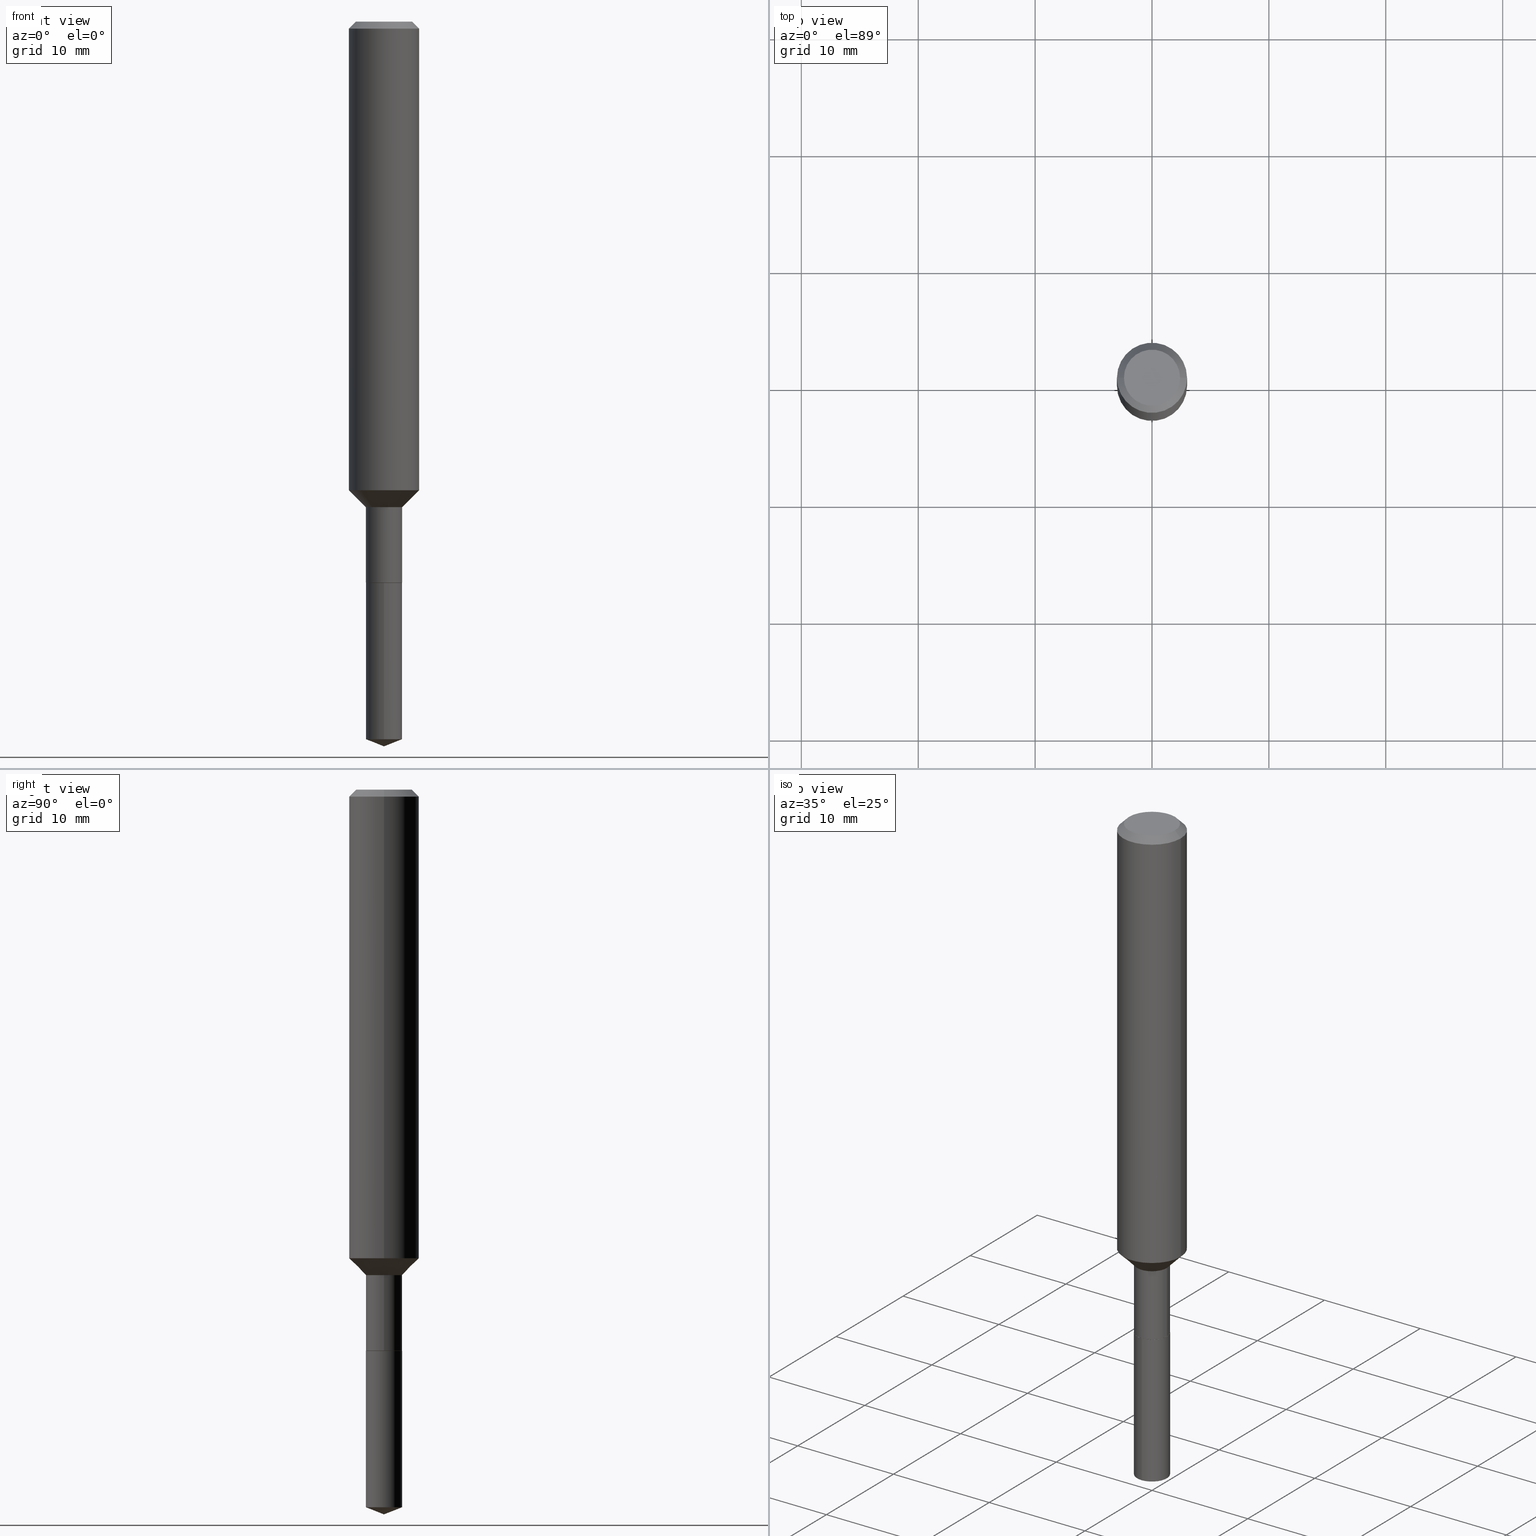
[diagram: canonical four-view strip — front | top / right | iso, engineering-drawing reading convention]
A machine part, canonical four-view strip (front | top / right | iso — engineering-drawing reading convention). The complete STEP part file that produces these views, byte-faithful:
ISO-10303-21;
HEADER;
FILE_DESCRIPTION (( 'STEP AP203' ),
    '1' );
FILE_NAME ('66401.STEP',
    '2024-04-24T22:10:24',
    ( '' ),
    ( '' ),
    'SwSTEP 2.0',
    'SolidWorks 2023',
    '' );
FILE_SCHEMA (( 'CONFIG_CONTROL_DESIGN' ));
ENDSEC;

DATA;
#1 = CARTESIAN_POINT ( 'NONE',  ( 0.1181000000000001632, -6.334594593063117919E-15, -1.578100000000000058 ) ) ;
#2 = CARTESIAN_POINT ( 'NONE',  ( 0.000000000000000000, 0.000000000000000000, 0.000000000000000000 ) ) ;
#3 = EDGE_CURVE ( 'NONE', #59, #392, #174, .T. ) ;
#4 = AXIS2_PLACEMENT_3D ( 'NONE', #460, #382, #431 ) ;
#5 = AXIS2_PLACEMENT_3D ( 'NONE', #217, #373, #360 ) ;
#6 = CARTESIAN_POINT ( 'NONE',  ( -4.259607233388032369E-16, -0.06100000000000843636, -2.416871460987488618 ) ) ;
#7 = APPROVAL ( #257, 'UNSPECIFIED' ) ;
#8 = APPROVAL_STATUS ( 'not_yet_approved' ) ;
#9 = PLANE ( 'NONE',  #306 ) ;
#10 = ORIENTED_EDGE ( 'NONE', *, *, #442, .T. ) ;
#11 = DATE_AND_TIME ( #348, #473 ) ;
#12 = CARTESIAN_POINT ( 'NONE',  ( 4.716267017698007905E-46, -6.733579360998555036E-32, -1.928573779297252010E-17 ) ) ;
#13 = VERTEX_POINT ( 'NONE', #172 ) ;
#14 = AXIS2_PLACEMENT_3D ( 'NONE', #2, #307, #69 ) ;
#15 = ADVANCED_FACE ( 'NONE', ( #296 ), #149, .T. ) ;
#16 = DIRECTION ( 'NONE',  ( 1.000000000000000000, -6.982962677686273021E-15, 0.000000000000000000 ) ) ;
#17 = ORIENTED_EDGE ( 'NONE', *, *, #107, .F. ) ;
#18 = LINE ( 'NONE', #274, #89 ) ;
#19 = ORIENTED_EDGE ( 'NONE', *, *, #107, .T. ) ;
#20 = EDGE_LOOP ( 'NONE', ( #313, #199, #350, #365 ) ) ;
#21 = EDGE_CURVE ( 'NONE', #290, #387, #188, .T. ) ;
#22 = CIRCLE ( 'NONE', #78, 0.06100000000000000561 ) ;
#23 = AXIS2_PLACEMENT_3D ( 'NONE', #12, #270, #160 ) ;
#24 = DIRECTION ( 'NONE',  ( 1.000000000000000000, -6.982962677686273021E-15, 0.000000000000000000 ) ) ;
#25 = CC_DESIGN_PERSON_AND_ORGANIZATION_ASSIGNMENT ( #80, #97, ( #38 ) ) ;
#26 = ORIENTED_EDGE ( 'NONE', *, *, #100, .F. ) ;
#27 = ADVANCED_FACE ( 'NONE', ( #396 ), #99, .T. ) ;
#28 = DIRECTION ( 'NONE',  ( -6.982962677686265922E-15, -1.000000000000000000, 4.478439333875842027E-15 ) ) ;
#29 = VECTOR ( 'NONE', #41, 39.37007874015748143 ) ;
#30 = CARTESIAN_POINT ( 'NONE',  ( 0.06049999999999999128, -7.020321528011911342E-15, -1.889700000000000157 ) ) ;
#31 = CC_DESIGN_APPROVAL ( #206, ( #38 ) ) ;
#32 = CARTESIAN_POINT ( 'NONE',  ( 5.776197320209327532E-31, -8.246878922347559293E-17, -0.02362000000000014088 ) ) ;
#33 = CARTESIAN_POINT ( 'NONE',  ( -0.06099999999999996397, -5.275839216462650965E-15, -1.635199999999999987 ) ) ;
#34 =( NAMED_UNIT ( * ) PLANE_ANGLE_UNIT ( ) SI_UNIT ( $, .RADIAN. ) );
#35 = LINE ( 'NONE', #33, #72 ) ;
#36 = CARTESIAN_POINT ( 'NONE',  ( 5.776197320209327532E-31, -8.246878922347559293E-17, -0.02362000000000014088 ) ) ;
#37 = AXIS2_PLACEMENT_3D ( 'NONE', #234, #42, #308 ) ;
#38 = SECURITY_CLASSIFICATION ( '', '', #419 ) ;
#39 = CARTESIAN_POINT ( 'NONE',  ( 3.998830591873936084E-29, -5.709270285276311674E-15, -1.635199999999999987 ) ) ;
#40 = EDGE_CURVE ( 'NONE', #384, #387, #62, .T. ) ;
#41 = DIRECTION ( 'NONE',  ( -2.445468806185136877E-29, 3.491481338843145188E-15, 1.000000000000000000 ) ) ;
#42 = DIRECTION ( 'NONE',  ( -2.445468806185136597E-29, 3.491481338843145583E-15, 1.000000000000000000 ) ) ;
#43 = CIRCLE ( 'NONE', #23, 0.09447999999999998066 ) ;
#44 = CC_DESIGN_APPROVAL ( #375, ( #411 ) ) ;
#45 = DIRECTION ( 'NONE',  ( -2.445468806185136597E-29, 3.491481338843145583E-15, 1.000000000000000000 ) ) ;
#46 = VERTEX_POINT ( 'NONE', #30 ) ;
#47 = APPROVAL_DATE_TIME ( #84, #206 ) ;
#48 = CARTESIAN_POINT ( 'NONE',  ( 5.776197320209327532E-31, -8.246878922347559293E-17, -0.02362000000000014088 ) ) ;
#49 = ORIENTED_EDGE ( 'NONE', *, *, #383, .T. ) ;
#50 = ADVANCED_FACE ( 'NONE', ( #182 ), #410, .T. ) ;
#51 = CARTESIAN_POINT ( 'NONE',  ( -0.1180999999999999966, -1.957036774093242387E-15, -0.02362000000000014088 ) ) ;
#52 = ORIENTED_EDGE ( 'NONE', *, *, #456, .F. ) ;
#53 = AXIS2_PLACEMENT_3D ( 'NONE', #110, #263, #104 ) ;
#54 = FACE_OUTER_BOUND ( 'NONE', #399, .T. ) ;
#55 = ORIENTED_EDGE ( 'NONE', *, *, #124, .T. ) ;
#56 = ADVANCED_FACE ( 'NONE', ( #441 ), #395, .T. ) ;
#57 = EDGE_LOOP ( 'NONE', ( #17, #291, #327, #52 ) ) ;
#58 = COORDINATED_UNIVERSAL_TIME_OFFSET ( 5, 0, .BEHIND. ) ;
#59 = VERTEX_POINT ( 'NONE', #484 ) ;
#60 = CIRCLE ( 'NONE', #166, 0.06049999999999999128 ) ;
#61 = ORIENTED_EDGE ( 'NONE', *, *, #146, .F. ) ;
#62 = LINE ( 'NONE', #258, #437 ) ;
#63 = DIRECTION ( 'NONE',  ( -2.445468806185136597E-29, 3.491481338843145583E-15, 1.000000000000000000 ) ) ;
#64 = EDGE_LOOP ( 'NONE', ( #275, #236, #436, #309 ) ) ;
#65 = DIRECTION ( 'NONE',  ( -6.982962677686268288E-15, -1.000000000000000000, 3.498627837350014083E-15 ) ) ;
#66 = CIRCLE ( 'NONE', #173, 0.1180999999999999966 ) ;
#67 = EDGE_LOOP ( 'NONE', ( #369, #77, #247, #359 ) ) ;
#68 = ADVANCED_FACE ( 'NONE', ( #221 ), #433, .F. ) ;
#69 = DIRECTION ( 'NONE',  ( 1.000000000000000000, -6.982962677686266711E-15, 4.876176775795936353E-29 ) ) ;
#70 = FACE_OUTER_BOUND ( 'NONE', #64, .T. ) ;
#71 = DIRECTION ( 'NONE',  ( -2.445468806185136597E-29, 3.491481338843145583E-15, 1.000000000000000000 ) ) ;
#72 = VECTOR ( 'NONE', #269, 39.37007874015748143 ) ;
#73 = ADVANCED_FACE ( 'NONE', ( #401 ), #196, .T. ) ;
#74 = CARTESIAN_POINT ( 'NONE',  ( 5.776197320209327532E-31, -8.246878922347559293E-17, -0.02362000000000014088 ) ) ;
#75 = DIRECTION ( 'NONE',  ( -2.445468806185136597E-29, 3.491481338843145583E-15, 1.000000000000000000 ) ) ;
#76 = DIRECTION ( 'NONE',  ( -6.982962677686268288E-15, -1.000000000000000000, 3.498627837350014083E-15 ) ) ;
#77 = ORIENTED_EDGE ( 'NONE', *, *, #3, .T. ) ;
#78 = AXIS2_PLACEMENT_3D ( 'NONE', #157, #200, #457 ) ;
#79 = VECTOR ( 'NONE', #391, 39.37007874015748143 ) ;
#80 = PERSON_AND_ORGANIZATION ( #186, #246 ) ;
#81 = DIRECTION ( 'NONE',  ( -2.445468806185136597E-29, 3.491481338843145583E-15, 1.000000000000000000 ) ) ;
#82 = ADVANCED_FACE ( 'NONE', ( #70 ), #155, .T. ) ;
#83 = EDGE_LOOP ( 'NONE', ( #140, #422, #86, #332 ) ) ;
#84 = DATE_AND_TIME ( #330, #117 ) ;
#85 = CARTESIAN_POINT ( 'NONE',  ( 4.334310688137201206E-16, 0.06099999999999155403, -2.416871460987489062 ) ) ;
#86 = ORIENTED_EDGE ( 'NONE', *, *, #278, .F. ) ;
#87 = DIRECTION ( 'NONE',  ( 0.7071067811866259545, -2.468850131083078659E-15, 0.7071067811864690800 ) ) ;
#88 = ORIENTED_EDGE ( 'NONE', *, *, #232, .T. ) ;
#89 = VECTOR ( 'NONE', #87, 39.37007874015748143 ) ;
#90 = AXIS2_PLACEMENT_3D ( 'NONE', #293, #63, #102 ) ;
#91 = DIRECTION ( 'NONE',  ( -2.445468806185136597E-29, 3.491481338843145583E-15, 1.000000000000000000 ) ) ;
#92 = ORIENTED_EDGE ( 'NONE', *, *, #220, .T. ) ;
#93 = PRODUCT_DEFINITION ( 'UNKNOWN', '', #411, #122 ) ;
#94 = CARTESIAN_POINT ( 'NONE',  ( -0.06049999999999999128, -6.167973930877032679E-15, -1.889700000000000157 ) ) ;
#95 = PERSON_AND_ORGANIZATION ( #186, #246 ) ;
#96 = EDGE_LOOP ( 'NONE', ( #88, #426 ) ) ;
#97 = PERSON_AND_ORGANIZATION_ROLE ( 'classification_officer' ) ;
#98 = AXIS2_PLACEMENT_3D ( 'NONE', #36, #305, #267 ) ;
#99 = CYLINDRICAL_SURFACE ( 'NONE', #164, 0.06099999999999999173 ) ;
#100 = EDGE_CURVE ( 'NONE', #165, #204, #430, .T. ) ;
#101 = COORDINATED_UNIVERSAL_TIME_OFFSET ( 5, 0, .BEHIND. ) ;
#102 = DIRECTION ( 'NONE',  ( 1.000000000000000000, -6.982962677686263555E-15, 0.000000000000000000 ) ) ;
#103 = CARTESIAN_POINT ( 'NONE',  ( 4.621202403048053204E-29, -6.597852286011892490E-15, -1.889700000000000157 ) ) ;
#104 = DIRECTION ( 'NONE',  ( 1.000000000000000000, 0.000000000000000000, 0.000000000000000000 ) ) ;
#105 = EDGE_LOOP ( 'NONE', ( #393, #461, #458 ) ) ;
#106 =( NAMED_UNIT ( * ) SI_UNIT ( $, .STERADIAN. ) SOLID_ANGLE_UNIT ( ) );
#107 = EDGE_CURVE ( 'NONE', #416, #204, #35, .T. ) ;
#108 = VECTOR ( 'NONE', #448, 39.37007874015748143 ) ;
#109 = DIRECTION ( 'NONE',  ( -2.445468806185136597E-29, 3.491481338843145583E-15, 1.000000000000000000 ) ) ;
#110 = CARTESIAN_POINT ( 'NONE',  ( 0.000000000000000000, 0.000000000000000000, 0.000000000000000000 ) ) ;
#111 = CC_DESIGN_PERSON_AND_ORGANIZATION_ASSIGNMENT ( #159, #272, ( #411 ) ) ;
#112 = DIRECTION ( 'NONE',  ( -2.445468806185136597E-29, 3.491481338843145583E-15, 1.000000000000000000 ) ) ;
#113 = DIRECTION ( 'NONE',  ( -2.434988852863249163E-29, 3.506489228481988303E-15, 1.000000000000000000 ) ) ;
#114 = EDGE_CURVE ( 'NONE', #356, #165, #192, .T. ) ;
#115 = CARTESIAN_POINT ( 'NONE',  ( -0.1181000000000000799, 8.391509709326788873E-16, -5.809262341591047988E-30 ) ) ;
#116 = AXIS2_PLACEMENT_3D ( 'NONE', #303, #112, #486 ) ;
#117 = LOCAL_TIME ( 18, 10, 24.00000000000000000, #288 ) ;
#118 = PRODUCT ( '66401', '66401', '', ( #447 ) ) ;
#119 = DIRECTION ( 'NONE',  ( -2.434988852863249163E-29, 3.506489228481988303E-15, 1.000000000000000000 ) ) ;
#120 = DIRECTION ( 'NONE',  ( 1.000000000000000000, -6.982962677686261189E-15, 0.000000000000000000 ) ) ;
#121 = ORIENTED_EDGE ( 'NONE', *, *, #3, .F. ) ;
#122 = DESIGN_CONTEXT ( 'detailed design', #341, 'design' ) ;
#123 = PERSON_AND_ORGANIZATION ( #186, #246 ) ;
#124 = EDGE_CURVE ( 'NONE', #361, #126, #66, .T. ) ;
#125 = DIRECTION ( 'NONE',  ( 1.000000000000000000, -6.982962677686268288E-15, 0.000000000000000000 ) ) ;
#126 = VERTEX_POINT ( 'NONE', #380 ) ;
#127 = AXIS2_PLACEMENT_3D ( 'NONE', #48, #91, #282 ) ;
#128 = CC_DESIGN_SECURITY_CLASSIFICATION ( #38, ( #411 ) ) ;
#129 = CALENDAR_DATE ( 2024, 24, 4 ) ;
#130 = CARTESIAN_POINT ( 'NONE',  ( -0.1180999999999999966, 7.422191030112725094E-16, -0.02362000000000014088 ) ) ;
#131 = ORIENTED_EDGE ( 'NONE', *, *, #232, .F. ) ;
#132 = MANIFOLD_SOLID_BREP ( 'Body-Move/Copy2[1]', #299 ) ;
#133 = CARTESIAN_POINT ( 'NONE',  ( 0.1181000000000000799, -8.246878922347486570E-16, 5.758764772215004644E-30 ) ) ;
#134 = ORIENTED_EDGE ( 'NONE', *, *, #383, .F. ) ;
#135 = FACE_OUTER_BOUND ( 'NONE', #242, .T. ) ;
#136 = ORIENTED_EDGE ( 'NONE', *, *, #255, .F. ) ;
#137 = MANIFOLD_SOLID_BREP ( 'Body-Move/Copy2[2]', #194 ) ;
#138 = CONICAL_SURFACE ( 'NONE', #266, 0.1180999999999999966, 0.7853981633974460586 ) ;
#139 = DIRECTION ( 'NONE',  ( -2.445468806185136597E-29, 3.491481338843145583E-15, 1.000000000000000000 ) ) ;
#140 = ORIENTED_EDGE ( 'NONE', *, *, #100, .T. ) ;
#141 = EDGE_LOOP ( 'NONE', ( #61, #218, #171, #283 ) ) ;
#142 = DIRECTION ( 'NONE',  ( -2.434988852863249163E-29, 3.506489228481988303E-15, 1.000000000000000000 ) ) ;
#143 = CARTESIAN_POINT ( 'NONE',  ( 4.621202403048053204E-29, -6.597852286011892490E-15, -1.889700000000000157 ) ) ;
#144 = PERSON_AND_ORGANIZATION_ROLE ( 'design_owner' ) ;
#145 = ORIENTED_EDGE ( 'NONE', *, *, #357, .F. ) ;
#146 = EDGE_CURVE ( 'NONE', #204, #361, #451, .T. ) ;
#147 = DIRECTION ( 'NONE',  ( -2.445468806185136597E-29, 3.491481338843145583E-15, 1.000000000000000000 ) ) ;
#148 = CC_DESIGN_PERSON_AND_ORGANIZATION_ASSIGNMENT ( #123, #362, ( #93 ) ) ;
#149 = CONICAL_SURFACE ( 'NONE', #417, 0.06049999999999999128, 0.7853981633975591903 ) ;
#150 = AXIS2_PLACEMENT_3D ( 'NONE', #103, #178, #256 ) ;
#151 = CARTESIAN_POINT ( 'NONE',  ( -0.1181000000000001632, -4.670755729895689092E-15, -1.578100000000000058 ) ) ;
#152 = EDGE_CURVE ( 'NONE', #13, #384, #413, .T. ) ;
#153 = LINE ( 'NONE', #193, #260 ) ;
#154 = CARTESIAN_POINT ( 'NONE',  ( 0.06100000000000000561, -7.022067268681333634E-15, -1.889200000000000212 ) ) ;
#155 = CYLINDRICAL_SURFACE ( 'NONE', #226, 0.06099999999999997785 ) ;
#156 = VECTOR ( 'NONE', #241, 39.37007874015748143 ) ;
#157 = CARTESIAN_POINT ( 'NONE',  ( 4.619979668644960403E-29, -6.596106545342470986E-15, -1.889200000000000212 ) ) ;
#158 = EDGE_CURVE ( 'NONE', #468, #126, #153, .T. ) ;
#159 = PERSON_AND_ORGANIZATION ( #186, #246 ) ;
#160 = DIRECTION ( 'NONE',  ( 1.000000000000000000, -6.982962677686267499E-15, 4.875432709231658792E-29 ) ) ;
#161 = ORIENTED_EDGE ( 'NONE', *, *, #225, .T. ) ;
#162 = DATE_TIME_ROLE ( 'classification_date' ) ;
#163 = FACE_OUTER_BOUND ( 'NONE', #67, .T. ) ;
#164 = AXIS2_PLACEMENT_3D ( 'NONE', #363, #478, #28 ) ;
#165 = VERTEX_POINT ( 'NONE', #1 ) ;
#166 = AXIS2_PLACEMENT_3D ( 'NONE', #207, #465, #120 ) ;
#167 = ADVANCED_FACE ( 'NONE', ( #265 ), #187, .T. ) ;
#168 = LINE ( 'NONE', #133, #79 ) ;
#169 = ORIENTED_EDGE ( 'NONE', *, *, #414, .F. ) ;
#170 = CARTESIAN_POINT ( 'NONE',  ( 0.06099999999999996397, -6.135231008615174322E-15, -1.635199999999999987 ) ) ;
#171 = ORIENTED_EDGE ( 'NONE', *, *, #427, .T. ) ;
#172 = CARTESIAN_POINT ( 'NONE',  ( 5.943564290953905470E-29, -8.558989557801686786E-15, -2.440900000000000070 ) ) ;
#173 = AXIS2_PLACEMENT_3D ( 'NONE', #74, #71, #345 ) ;
#174 = LINE ( 'NONE', #94, #231 ) ;
#175 = ADVANCED_FACE ( 'NONE', ( #227 ), #487, .T. ) ;
#176 = DIRECTION ( 'NONE',  ( -0.7071067811866259545, 7.493145998870638150E-15, 0.7071067811864690800 ) ) ;
#177 = CC_DESIGN_PERSON_AND_ORGANIZATION_ASSIGNMENT ( #311, #254, ( #411 ) ) ;
#178 = DIRECTION ( 'NONE',  ( 2.434988852863248882E-29, -3.506489228481988303E-15, -1.000000000000000000 ) ) ;
#179 =( CONVERSION_BASED_UNIT ( 'INCH', #440 ) LENGTH_UNIT ( ) NAMED_UNIT ( #425 ) );
#180 = CIRCLE ( 'NONE', #127, 0.1180999999999999966 ) ;
#181 = AXIS2_PLACEMENT_3D ( 'NONE', #331, #142, #65 ) ;
#182 = FACE_OUTER_BOUND ( 'NONE', #251, .T. ) ;
#183 = DIRECTION ( 'NONE',  ( -1.000000000000000000, 6.982962677686266711E-15, 0.000000000000000000 ) ) ;
#184 = DIRECTION ( 'NONE',  ( -6.982962677686265922E-15, -1.000000000000000000, 4.478439333875842027E-15 ) ) ;
#185 = ADVANCED_FACE ( 'NONE', ( #223 ), #230, .T. ) ;
#186 = PERSON ( 'UNSPECIFIED', 'UNSPECIFIED', 'UNSPECIFIED', ('UNSPECIFIED'), ('UNSPECIFIED'), ('UNSPECIFIED') ) ;
#187 = CYLINDRICAL_SURFACE ( 'NONE', #233, 0.1181000000000000799 ) ;
#188 = CIRCLE ( 'NONE', #252, 0.06099999999999999173 ) ;
#189 = AXIS2_PLACEMENT_3D ( 'NONE', #39, #109, #409 ) ;
#190 = AXIS2_PLACEMENT_3D ( 'NONE', #470, #415, #76 ) ;
#191 = DIRECTION ( 'NONE',  ( 0.7071067811865484609, -2.468850131082266921E-15, 0.7071067811865465735 ) ) ;
#192 = LINE ( 'NONE', #342, #418 ) ;
#193 = CARTESIAN_POINT ( 'NONE',  ( 0.1180999999999999966, -8.926936027602933910E-16, -0.02362000000000014088 ) ) ;
#194 = CLOSED_SHELL ( 'NONE', ( #286, #73, #175, #50, #82, #211, #56, #167, #480, #229, #315, #15 ) ) ;
#195 = CARTESIAN_POINT ( 'NONE',  ( -0.06099999999999997785, 4.334310688136609560E-16, -3.000550405055491442E-30 ) ) ;
#196 = CONICAL_SURFACE ( 'NONE', #98, 0.1180999999999999966, 0.7853981633974460586 ) ;
#197 = APPROVAL_DATE_TIME ( #423, #375 ) ;
#198 = DIRECTION ( 'NONE',  ( -1.000000000000000000, 6.982962677686265922E-15, -4.876176775795935793E-29 ) ) ;
#199 = ORIENTED_EDGE ( 'NONE', *, *, #158, .T. ) ;
#200 = DIRECTION ( 'NONE',  ( -2.445468806185136597E-29, 3.491481338843145583E-15, 1.000000000000000000 ) ) ;
#201 = EDGE_LOOP ( 'NONE', ( #145, #161, #389, #343 ) ) ;
#202 = EDGE_CURVE ( 'NONE', #13, #403, #450, .T. ) ;
#203 = DIRECTION ( 'NONE',  ( -2.445468806185136877E-29, 3.491481338843145188E-15, 1.000000000000000000 ) ) ;
#204 = VERTEX_POINT ( 'NONE', #151 ) ;
#205 = CONICAL_SURFACE ( 'NONE', #190, 99.94676754583969114, 1.195550537616118625 ) ;
#206 = APPROVAL ( #237, 'UNSPECIFIED' ) ;
#207 = CARTESIAN_POINT ( 'NONE',  ( 4.621202403048053204E-29, -6.597852286011892490E-15, -1.889700000000000157 ) ) ;
#208 = VERTEX_POINT ( 'NONE', #154 ) ;
#209 = ORIENTED_EDGE ( 'NONE', *, *, #40, .F. ) ;
#210 = EDGE_LOOP ( 'NONE', ( #10, #466, #429, #209 ) ) ;
#211 = ADVANCED_FACE ( 'NONE', ( #337 ), #374, .T. ) ;
#212 = CIRCLE ( 'NONE', #37, 0.06049999999999999128 ) ;
#213 = CC_DESIGN_APPROVAL ( #7, ( #93 ) ) ;
#214 = ORIENTED_EDGE ( 'NONE', *, *, #323, .T. ) ;
#215 = APPROVAL_DATE_TIME ( #400, #7 ) ;
#216 = DIRECTION ( 'NONE',  ( 1.000000000000000000, -6.982962677686273021E-15, 0.000000000000000000 ) ) ;
#217 = CARTESIAN_POINT ( 'NONE',  ( 4.621202403048053204E-29, -6.597852286011892490E-15, -1.889700000000000157 ) ) ;
#218 = ORIENTED_EDGE ( 'NONE', *, *, #456, .T. ) ;
#219 = FACE_OUTER_BOUND ( 'NONE', #105, .T. ) ;
#220 = EDGE_CURVE ( 'NONE', #356, #416, #333, .T. ) ;
#221 = FACE_OUTER_BOUND ( 'NONE', #322, .T. ) ;
#222 = DIRECTION ( 'NONE',  ( -2.434988852863249163E-29, 3.506489228481988303E-15, 1.000000000000000000 ) ) ;
#223 = FACE_OUTER_BOUND ( 'NONE', #201, .T. ) ;
#224 = DIRECTION ( 'NONE',  ( 1.000000000000000000, -6.982962677686266711E-15, 4.876176775795935232E-29 ) ) ;
#225 = EDGE_CURVE ( 'NONE', #403, #384, #453, .T. ) ;
#226 = AXIS2_PLACEMENT_3D ( 'NONE', #406, #228, #224 ) ;
#227 = FACE_OUTER_BOUND ( 'NONE', #83, .T. ) ;
#228 = DIRECTION ( 'NONE',  ( -2.445468806185136597E-29, 3.491481338843145583E-15, 1.000000000000000000 ) ) ;
#229 = ADVANCED_FACE ( 'NONE', ( #408 ), #376, .F. ) ;
#230 = CYLINDRICAL_SURFACE ( 'NONE', #353, 0.06099999999999999173 ) ;
#231 = VECTOR ( 'NONE', #176, 39.37007874015748143 ) ;
#232 = EDGE_CURVE ( 'NONE', #439, #468, #43, .T. ) ;
#233 = AXIS2_PLACEMENT_3D ( 'NONE', #346, #75, #455 ) ;
#234 = CARTESIAN_POINT ( 'NONE',  ( 4.621202403048053204E-29, -6.597852286011892490E-15, -1.889700000000000157 ) ) ;
#235 = AXIS2_PLACEMENT_3D ( 'NONE', #424, #467, #16 ) ;
#236 = ORIENTED_EDGE ( 'NONE', *, *, #248, .T. ) ;
#237 = APPROVAL_STATUS ( 'not_yet_approved' ) ;
#238 = DIRECTION ( 'NONE',  ( 1.000000000000000000, -6.982962677686265922E-15, 4.876176775795935793E-29 ) ) ;
#239 = ORIENTED_EDGE ( 'NONE', *, *, #248, .F. ) ;
#240 = APPROVAL_ROLE ( '' ) ;
#241 = DIRECTION ( 'NONE',  ( -2.434988852863248882E-29, 3.506489228481988303E-15, 1.000000000000000000 ) ) ;
#242 = EDGE_LOOP ( 'NONE', ( #136, #169 ) ) ;
#243 = CARTESIAN_POINT ( 'NONE',  ( 4.334310688137072523E-16, 0.06099999999999339284, -1.889700000000000379 ) ) ;
#244 = ORIENTED_EDGE ( 'NONE', *, *, #398, .T. ) ;
#245 = AXIS2_PLACEMENT_3D ( 'NONE', #354, #45, #347 ) ;
#246 = ORGANIZATION ( 'UNSPECIFIED', 'UNSPECIFIED', '' ) ;
#247 = ORIENTED_EDGE ( 'NONE', *, *, #344, .F. ) ;
#248 = EDGE_CURVE ( 'NONE', #392, #416, #277, .T. ) ;
#249 = EDGE_LOOP ( 'NONE', ( #474, #131, #244, #55 ) ) ;
#250 = PRODUCT_RELATED_PRODUCT_CATEGORY ( 'detail', '', ( #118 ) ) ;
#251 = EDGE_LOOP ( 'NONE', ( #92, #19, #26, #471 ) ) ;
#252 = AXIS2_PLACEMENT_3D ( 'NONE', #143, #324, #329 ) ;
#253 = DIRECTION ( 'NONE',  ( -2.434988852863248882E-29, 3.506489228481988303E-15, 1.000000000000000000 ) ) ;
#254 = PERSON_AND_ORGANIZATION_ROLE ( 'design_supplier' ) ;
#255 = EDGE_CURVE ( 'NONE', #46, #59, #212, .T. ) ;
#256 = DIRECTION ( 'NONE',  ( 6.982962677686265922E-15, 1.000000000000000000, -3.506489228481988303E-15 ) ) ;
#257 = APPROVAL_STATUS ( 'not_yet_approved' ) ;
#258 = CARTESIAN_POINT ( 'NONE',  ( -4.259607233388159573E-16, -0.06100000000000659062, -1.889699999999999713 ) ) ;
#259 = DIRECTION ( 'NONE',  ( -2.445468806185136877E-29, 3.491481338843145188E-15, 1.000000000000000000 ) ) ;
#260 = VECTOR ( 'NONE', #304, 39.37007874015748143 ) ;
#261 = APPROVAL_PERSON_ORGANIZATION ( #328, #375, #240 ) ;
#262 = CARTESIAN_POINT ( 'NONE',  ( 5.904859034100222051E-29, -8.446373335527634562E-15, -2.416871460987489062 ) ) ;
#263 = DIRECTION ( 'NONE',  ( 0.000000000000000000, 0.000000000000000000, 1.000000000000000000 ) ) ;
#264 = DIRECTION ( 'NONE',  ( -6.982962677686265922E-15, -1.000000000000000000, 4.478439333875841238E-15 ) ) ;
#265 = FACE_OUTER_BOUND ( 'NONE', #141, .T. ) ;
#266 = AXIS2_PLACEMENT_3D ( 'NONE', #32, #485, #183 ) ;
#267 = DIRECTION ( 'NONE',  ( -1.000000000000000000, 6.982962677686266711E-15, 0.000000000000000000 ) ) ;
#268 = PRODUCT_DEFINITION_SHAPE ( 'NONE', 'NONE',  #93 ) ;
#269 = DIRECTION ( 'NONE',  ( -0.7071067811865484609, 7.493145998870357316E-15, 0.7071067811865465735 ) ) ;
#270 = DIRECTION ( 'NONE',  ( -2.445468806185136597E-29, 3.491481338843145583E-15, 1.000000000000000000 ) ) ;
#271 = ORIENTED_EDGE ( 'NONE', *, *, #464, .T. ) ;
#272 = PERSON_AND_ORGANIZATION_ROLE ( 'creator' ) ;
#273 = VECTOR ( 'NONE', #388, 39.37007874015748143 ) ;
#274 = CARTESIAN_POINT ( 'NONE',  ( 0.06049999999999999128, -7.020321528011911342E-15, -1.889700000000000157 ) ) ;
#275 = ORIENTED_EDGE ( 'NONE', *, *, #344, .T. ) ;
#276 = DATE_TIME_ROLE ( 'creation_date' ) ;
#277 = LINE ( 'NONE', #195, #462 ) ;
#278 = EDGE_CURVE ( 'NONE', #126, #361, #180, .T. ) ;
#279 = ORIENTED_EDGE ( 'NONE', *, *, #366, .F. ) ;
#280 = CARTESIAN_POINT ( 'NONE',  ( 2.358133508849003952E-46, -3.366789680499277518E-32, -9.642868896486260050E-18 ) ) ;
#281 = EDGE_LOOP ( 'NONE', ( #121, #367, #214, #134 ) ) ;
#282 = DIRECTION ( 'NONE',  ( 1.000000000000000000, -6.982962677686266711E-15, 0.000000000000000000 ) ) ;
#283 = ORIENTED_EDGE ( 'NONE', *, *, #124, .F. ) ;
#284 = VECTOR ( 'NONE', #490, 39.37007874015748854 ) ;
#285 = CIRCLE ( 'NONE', #397, 0.06100000000000000561 ) ;
#286 = ADVANCED_FACE ( 'NONE', ( #163 ), #488, .T. ) ;
#287 = CARTESIAN_POINT ( 'NONE',  ( 3.998830591873936084E-29, -5.709270285276311674E-15, -1.635199999999999987 ) ) ;
#288 = COORDINATED_UNIVERSAL_TIME_OFFSET ( 5, 0, .BEHIND. ) ;
#289 = ADVANCED_BREP_SHAPE_REPRESENTATION ( '66401', ( #132, #137, #53 ), #454 ) ;
#290 = VERTEX_POINT ( 'NONE', #381 ) ;
#291 = ORIENTED_EDGE ( 'NONE', *, *, #366, .T. ) ;
#292 = CIRCLE ( 'NONE', #5, 0.06099999999999999173 ) ;
#293 = CARTESIAN_POINT ( 'NONE',  ( 3.859194323040764276E-29, -5.509906700828368078E-15, -1.578100000000000058 ) ) ;
#294 = DIRECTION ( 'NONE',  ( -2.445468806185136597E-29, 3.491481338843145583E-15, 1.000000000000000000 ) ) ;
#295 = PERSON_AND_ORGANIZATION ( #186, #246 ) ;
#296 = FACE_OUTER_BOUND ( 'NONE', #281, .T. ) ;
#297 = LINE ( 'NONE', #371, #364 ) ;
#298 = CARTESIAN_POINT ( 'NONE',  ( 3.859194323040764276E-29, -5.509906700828368078E-15, -1.578100000000000058 ) ) ;
#299 = CLOSED_SHELL ( 'NONE', ( #27, #449, #435, #185, #68 ) ) ;
#300 = AXIS2_PLACEMENT_3D ( 'NONE', #262, #113, #264 ) ;
#301 = APPLICATION_PROTOCOL_DEFINITION ( 'international standard', 'config_control_design', 1994, #469 ) ;
#302 = APPROVAL_PERSON_ORGANIZATION ( #95, #206, #385 ) ;
#303 = CARTESIAN_POINT ( 'NONE',  ( 0.000000000000000000, 0.000000000000000000, 0.000000000000000000 ) ) ;
#304 = DIRECTION ( 'NONE',  ( 0.7071067811865459074, -7.319954787623249734E-15, -0.7071067811865491270 ) ) ;
#305 = DIRECTION ( 'NONE',  ( 2.445468806185136597E-29, -3.491481338843145583E-15, -1.000000000000000000 ) ) ;
#306 = AXIS2_PLACEMENT_3D ( 'NONE', #319, #421, #238 ) ;
#307 = DIRECTION ( 'NONE',  ( -2.445468806185136597E-29, 3.491481338843145583E-15, 1.000000000000000000 ) ) ;
#308 = DIRECTION ( 'NONE',  ( 1.000000000000000000, -6.982962677686261189E-15, 0.000000000000000000 ) ) ;
#309 = ORIENTED_EDGE ( 'NONE', *, *, #464, .F. ) ;
#310 = UNCERTAINTY_MEASURE_WITH_UNIT (LENGTH_MEASURE( 1.000000000000000082E-05 ), #179, 'distance_accuracy_value', 'NONE');
#311 = PERSON_AND_ORGANIZATION ( #186, #246 ) ;
#312 = CARTESIAN_POINT ( 'NONE',  ( -0.06099999999999996397, -5.719257346495731015E-15, -1.635199999999999987 ) ) ;
#313 = ORIENTED_EDGE ( 'NONE', *, *, #338, .F. ) ;
#314 = SHAPE_DEFINITION_REPRESENTATION ( #268, #289 ) ;
#315 = ADVANCED_FACE ( 'NONE', ( #135 ), #9, .F. ) ;
#316 = AXIS2_PLACEMENT_3D ( 'NONE', #394, #139, #24 ) ;
#317 = LINE ( 'NONE', #243, #156 ) ;
#318 = EDGE_LOOP ( 'NONE', ( #239, #49, #271, #279 ) ) ;
#319 = CARTESIAN_POINT ( 'NONE',  ( 4.621202403048053204E-29, -6.597852286011892490E-15, -1.889700000000000157 ) ) ;
#320 = ORIENTED_EDGE ( 'NONE', *, *, #152, .T. ) ;
#321 = CARTESIAN_POINT ( 'NONE',  ( -0.09447999999999998066, 7.009847083995354710E-16, -1.928573779297727792E-17 ) ) ;
#322 = EDGE_LOOP ( 'NONE', ( #372, #352 ) ) ;
#323 = EDGE_CURVE ( 'NONE', #46, #208, #18, .T. ) ;
#324 = DIRECTION ( 'NONE',  ( -2.434988852863249163E-29, 3.506489228481988303E-15, 1.000000000000000000 ) ) ;
#325 = CIRCLE ( 'NONE', #4, 0.09447999999999998066 ) ;
#326 = CALENDAR_DATE ( 2024, 24, 4 ) ;
#327 = ORIENTED_EDGE ( 'NONE', *, *, #114, .T. ) ;
#328 = PERSON_AND_ORGANIZATION ( #186, #246 ) ;
#329 = DIRECTION ( 'NONE',  ( -6.982962677686265922E-15, -1.000000000000000000, 4.478439333875842027E-15 ) ) ;
#330 = CALENDAR_DATE ( 2024, 24, 4 ) ;
#331 = CARTESIAN_POINT ( 'NONE',  ( -8.990233460988559297E-28, 1.295201278780987653E-13, 36.92917874015748225 ) ) ;
#332 = ORIENTED_EDGE ( 'NONE', *, *, #427, .F. ) ;
#333 = CIRCLE ( 'NONE', #189, 0.06099999999999996397 ) ;
#334 = LOCAL_TIME ( 18, 10, 24.00000000000000000, #459 ) ;
#335 = DIRECTION ( 'NONE',  ( 1.000000000000000000, -6.982962677686261189E-15, 0.000000000000000000 ) ) ;
#336 = CARTESIAN_POINT ( 'NONE',  ( 5.904859034100222051E-29, -8.446373335527634562E-15, -2.416871460987489062 ) ) ;
#337 = FACE_OUTER_BOUND ( 'NONE', #318, .T. ) ;
#338 = EDGE_CURVE ( 'NONE', #468, #439, #325, .T. ) ;
#339 = CARTESIAN_POINT ( 'NONE',  ( 5.943564290953905470E-29, -8.558989557801686786E-15, -2.440900000000000070 ) ) ;
#340 = CC_DESIGN_DATE_AND_TIME_ASSIGNMENT ( #463, #162, ( #38 ) ) ;
#341 = APPLICATION_CONTEXT ( 'configuration controlled 3d designs of mechanical parts and assemblies' ) ;
#342 = CARTESIAN_POINT ( 'NONE',  ( 0.06099999999999996397, -6.135231008615174322E-15, -1.635199999999999987 ) ) ;
#343 = ORIENTED_EDGE ( 'NONE', *, *, #21, .F. ) ;
#344 = EDGE_CURVE ( 'NONE', #208, #392, #370, .T. ) ;
#345 = DIRECTION ( 'NONE',  ( 1.000000000000000000, -6.982962677686266711E-15, 0.000000000000000000 ) ) ;
#346 = CARTESIAN_POINT ( 'NONE',  ( 0.000000000000000000, 0.000000000000000000, 0.000000000000000000 ) ) ;
#347 = DIRECTION ( 'NONE',  ( 1.000000000000000000, -6.982962677686261189E-15, 0.000000000000000000 ) ) ;
#348 = CALENDAR_DATE ( 2024, 24, 4 ) ;
#349 = CARTESIAN_POINT ( 'NONE',  ( -4.259607233388159573E-16, -0.06100000000000659062, -1.889699999999999713 ) ) ;
#350 = ORIENTED_EDGE ( 'NONE', *, *, #278, .T. ) ;
#351 = LINE ( 'NONE', #130, #273 ) ;
#352 = ORIENTED_EDGE ( 'NONE', *, *, #21, .T. ) ;
#353 = AXIS2_PLACEMENT_3D ( 'NONE', #412, #119, #184 ) ;
#354 = CARTESIAN_POINT ( 'NONE',  ( 4.621202403048053204E-29, -6.597852286011892490E-15, -1.889700000000000157 ) ) ;
#355 = APPROVAL_PERSON_ORGANIZATION ( #295, #7, #402 ) ;
#356 = VERTEX_POINT ( 'NONE', #170 ) ;
#357 = EDGE_CURVE ( 'NONE', #403, #290, #317, .T. ) ;
#358 = DIRECTION ( 'NONE',  ( 2.438088387897960049E-29, -3.491481338843145188E-15, -1.000000000000000000 ) ) ;
#359 = ORIENTED_EDGE ( 'NONE', *, *, #323, .F. ) ;
#360 = DIRECTION ( 'NONE',  ( -6.982962677686265922E-15, -1.000000000000000000, 4.478439333875842027E-15 ) ) ;
#361 = VERTEX_POINT ( 'NONE', #51 ) ;
#362 = PERSON_AND_ORGANIZATION_ROLE ( 'creator' ) ;
#363 = CARTESIAN_POINT ( 'NONE',  ( 4.621202403048053204E-29, -6.597852286011892490E-15, -1.889700000000000157 ) ) ;
#364 = VECTOR ( 'NONE', #259, 39.37007874015748143 ) ;
#365 = ORIENTED_EDGE ( 'NONE', *, *, #398, .F. ) ;
#366 = EDGE_CURVE ( 'NONE', #416, #356, #446, .T. ) ;
#367 = ORIENTED_EDGE ( 'NONE', *, *, #414, .T. ) ;
#368 = FACE_OUTER_BOUND ( 'NONE', #249, .T. ) ;
#369 = ORIENTED_EDGE ( 'NONE', *, *, #255, .T. ) ;
#370 = CIRCLE ( 'NONE', #377, 0.06100000000000000561 ) ;
#371 = CARTESIAN_POINT ( 'NONE',  ( 0.06099999999999997785, -4.259607233388621057E-16, 2.974467833235519460E-30 ) ) ;
#372 = ORIENTED_EDGE ( 'NONE', *, *, #475, .T. ) ;
#373 = DIRECTION ( 'NONE',  ( -2.434988852863249163E-29, 3.506489228481988303E-15, 1.000000000000000000 ) ) ;
#374 = CYLINDRICAL_SURFACE ( 'NONE', #116, 0.06099999999999997785 ) ;
#375 = APPROVAL ( #8, 'UNSPECIFIED' ) ;
#376 = PLANE ( 'NONE',  #390 ) ;
#377 = AXIS2_PLACEMENT_3D ( 'NONE', #428, #81, #125 ) ;
#378 = CARTESIAN_POINT ( 'NONE',  ( 5.983519541380308679E-29, -8.502268739700643296E-15, -2.440900000000000070 ) ) ;
#379 = CC_DESIGN_PERSON_AND_ORGANIZATION_ASSIGNMENT ( #483, #144, ( #118 ) ) ;
#380 = CARTESIAN_POINT ( 'NONE',  ( 0.1180999999999999966, -9.071566814582237199E-16, -0.02362000000000014088 ) ) ;
#381 = CARTESIAN_POINT ( 'NONE',  ( 4.334310688137201699E-16, 0.06099999999999339284, -1.889700000000000379 ) ) ;
#382 = DIRECTION ( 'NONE',  ( -2.445468806185136597E-29, 3.491481338843145583E-15, 1.000000000000000000 ) ) ;
#383 = EDGE_CURVE ( 'NONE', #392, #208, #22, .T. ) ;
#384 = VERTEX_POINT ( 'NONE', #6 ) ;
#385 = APPROVAL_ROLE ( '' ) ;
#386 = CARTESIAN_POINT ( 'NONE',  ( -0.06100000000000000561, -5.719257346495731015E-15, -1.889200000000000212 ) ) ;
#387 = VERTEX_POINT ( 'NONE', #349 ) ;
#388 = DIRECTION ( 'NONE',  ( -0.7071067811865459074, 2.468850131082240100E-15, -0.7071067811865491270 ) ) ;
#389 = ORIENTED_EDGE ( 'NONE', *, *, #40, .T. ) ;
#390 = AXIS2_PLACEMENT_3D ( 'NONE', #280, #358, #198 ) ;
#391 = DIRECTION ( 'NONE',  ( -2.445468806185136877E-29, 3.491481338843145188E-15, 1.000000000000000000 ) ) ;
#392 = VERTEX_POINT ( 'NONE', #386 ) ;
#393 = ORIENTED_EDGE ( 'NONE', *, *, #152, .F. ) ;
#394 = CARTESIAN_POINT ( 'NONE',  ( 3.998830591873936084E-29, -5.709270285276311674E-15, -1.635199999999999987 ) ) ;
#395 = CONICAL_SURFACE ( 'NONE', #316, 0.06099999999999996397, 0.7853981633974496113 ) ;
#396 = FACE_OUTER_BOUND ( 'NONE', #210, .T. ) ;
#397 = AXIS2_PLACEMENT_3D ( 'NONE', #336, #222, #443 ) ;
#398 = EDGE_CURVE ( 'NONE', #439, #361, #351, .T. ) ;
#399 = EDGE_LOOP ( 'NONE', ( #432, #320, #481 ) ) ;
#400 = DATE_AND_TIME ( #129, #334 ) ;
#401 = FACE_OUTER_BOUND ( 'NONE', #20, .T. ) ;
#402 = APPROVAL_ROLE ( '' ) ;
#403 = VERTEX_POINT ( 'NONE', #85 ) ;
#404 = CONICAL_SURFACE ( 'NONE', #181, 99.94676754583969114, 1.195550537616118625 ) ;
#405 =( LENGTH_UNIT ( ) NAMED_UNIT ( * ) SI_UNIT ( $, .METRE. ) );
#406 = CARTESIAN_POINT ( 'NONE',  ( 0.000000000000000000, 0.000000000000000000, 0.000000000000000000 ) ) ;
#407 = CARTESIAN_POINT ( 'NONE',  ( 0.09447999999999998066, -7.704367267948738690E-16, -1.928573779296752193E-17 ) ) ;
#408 = FACE_OUTER_BOUND ( 'NONE', #96, .T. ) ;
#409 = DIRECTION ( 'NONE',  ( 1.000000000000000000, -6.982962677686273021E-15, 0.000000000000000000 ) ) ;
#410 = CONICAL_SURFACE ( 'NONE', #438, 0.06099999999999996397, 0.7853981633974496113 ) ;
#411 = PRODUCT_DEFINITION_FORMATION_WITH_SPECIFIED_SOURCE ( 'ANY', '', #118, .NOT_KNOWN. ) ;
#412 = CARTESIAN_POINT ( 'NONE',  ( 4.621202403048053204E-29, -6.597852286011892490E-15, -1.889700000000000157 ) ) ;
#413 = LINE ( 'NONE', #339, #284 ) ;
#414 = EDGE_CURVE ( 'NONE', #59, #46, #60, .T. ) ;
#415 = DIRECTION ( 'NONE',  ( -2.434988852863249163E-29, 3.506489228481988303E-15, 1.000000000000000000 ) ) ;
#416 = VERTEX_POINT ( 'NONE', #312 ) ;
#417 = AXIS2_PLACEMENT_3D ( 'NONE', #444, #476, #335 ) ;
#418 = VECTOR ( 'NONE', #191, 39.37007874015748143 ) ;
#419 = SECURITY_CLASSIFICATION_LEVEL ( 'unclassified' ) ;
#420 = LOCAL_TIME ( 18, 10, 24.00000000000000000, #477 ) ;
#421 = DIRECTION ( 'NONE',  ( -2.438088387897960049E-29, 3.491481338843145188E-15, 1.000000000000000000 ) ) ;
#422 = ORIENTED_EDGE ( 'NONE', *, *, #146, .T. ) ;
#423 = DATE_AND_TIME ( #326, #489 ) ;
#424 = CARTESIAN_POINT ( 'NONE',  ( 3.998830591873936084E-29, -5.709270285276311674E-15, -1.635199999999999987 ) ) ;
#425 = DIMENSIONAL_EXPONENTS ( 1.000000000000000000, 0.000000000000000000, 0.000000000000000000, 0.000000000000000000, 0.000000000000000000, 0.000000000000000000, 0.000000000000000000 ) ;
#426 = ORIENTED_EDGE ( 'NONE', *, *, #338, .T. ) ;
#427 = EDGE_CURVE ( 'NONE', #165, #126, #168, .T. ) ;
#428 = CARTESIAN_POINT ( 'NONE',  ( 4.619979668644960403E-29, -6.596106545342470986E-15, -1.889200000000000212 ) ) ;
#429 = ORIENTED_EDGE ( 'NONE', *, *, #475, .F. ) ;
#430 = CIRCLE ( 'NONE', #472, 0.1181000000000001632 ) ;
#431 = DIRECTION ( 'NONE',  ( 1.000000000000000000, -6.982962677686267499E-15, 4.875432709231658792E-29 ) ) ;
#432 = ORIENTED_EDGE ( 'NONE', *, *, #202, .F. ) ;
#433 = PLANE ( 'NONE',  #150 ) ;
#434 = CALENDAR_DATE ( 2024, 24, 4 ) ;
#435 = ADVANCED_FACE ( 'NONE', ( #54 ), #205, .T. ) ;
#436 = ORIENTED_EDGE ( 'NONE', *, *, #220, .F. ) ;
#437 = VECTOR ( 'NONE', #253, 39.37007874015748143 ) ;
#438 = AXIS2_PLACEMENT_3D ( 'NONE', #287, #294, #216 ) ;
#439 = VERTEX_POINT ( 'NONE', #321 ) ;
#440 = LENGTH_MEASURE_WITH_UNIT ( LENGTH_MEASURE( 0.02539999999999999897 ), #405 );
#441 = FACE_OUTER_BOUND ( 'NONE', #57, .T. ) ;
#442 = EDGE_CURVE ( 'NONE', #384, #403, #285, .T. ) ;
#443 = DIRECTION ( 'NONE',  ( -6.982962677686265922E-15, -1.000000000000000000, 4.478439333875841238E-15 ) ) ;
#444 = CARTESIAN_POINT ( 'NONE',  ( 4.621202403048053204E-29, -6.597852286011892490E-15, -1.889700000000000157 ) ) ;
#445 = DIRECTION ( 'NONE',  ( 1.000000000000000000, -6.982962677686263555E-15, 0.000000000000000000 ) ) ;
#446 = CIRCLE ( 'NONE', #235, 0.06099999999999996397 ) ;
#447 = MECHANICAL_CONTEXT ( 'NONE', #469, 'mechanical' ) ;
#448 = DIRECTION ( 'NONE',  ( 6.611014441532064222E-15, 0.9304175679820269051, 0.3665012267242913624 ) ) ;
#449 = ADVANCED_FACE ( 'NONE', ( #219 ), #404, .T. ) ;
#450 = LINE ( 'NONE', #378, #108 ) ;
#451 = LINE ( 'NONE', #115, #29 ) ;
#452 = CC_DESIGN_DATE_AND_TIME_ASSIGNMENT ( #11, #276, ( #93 ) ) ;
#453 = CIRCLE ( 'NONE', #300, 0.06100000000000000561 ) ;
#454 =( GEOMETRIC_REPRESENTATION_CONTEXT ( 3 ) GLOBAL_UNCERTAINTY_ASSIGNED_CONTEXT ( ( #310 ) ) GLOBAL_UNIT_ASSIGNED_CONTEXT ( ( #179, #34, #106 ) ) REPRESENTATION_CONTEXT ( 'NONE', 'WORKASPACE' ) );
#455 = DIRECTION ( 'NONE',  ( 1.000000000000000000, -6.982962677686266711E-15, 4.876176775795936353E-29 ) ) ;
#456 = EDGE_CURVE ( 'NONE', #204, #165, #482, .T. ) ;
#457 = DIRECTION ( 'NONE',  ( 1.000000000000000000, -6.982962677686268288E-15, 0.000000000000000000 ) ) ;
#458 = ORIENTED_EDGE ( 'NONE', *, *, #442, .F. ) ;
#459 = COORDINATED_UNIVERSAL_TIME_OFFSET ( 5, 0, .BEHIND. ) ;
#460 = CARTESIAN_POINT ( 'NONE',  ( 4.716267017698007905E-46, -6.733579360998555036E-32, -1.928573779297252010E-17 ) ) ;
#461 = ORIENTED_EDGE ( 'NONE', *, *, #202, .T. ) ;
#462 = VECTOR ( 'NONE', #203, 39.37007874015748143 ) ;
#463 = DATE_AND_TIME ( #434, #420 ) ;
#464 = EDGE_CURVE ( 'NONE', #208, #356, #297, .T. ) ;
#465 = DIRECTION ( 'NONE',  ( -2.445468806185136597E-29, 3.491481338843145583E-15, 1.000000000000000000 ) ) ;
#466 = ORIENTED_EDGE ( 'NONE', *, *, #357, .T. ) ;
#467 = DIRECTION ( 'NONE',  ( -2.445468806185136597E-29, 3.491481338843145583E-15, 1.000000000000000000 ) ) ;
#468 = VERTEX_POINT ( 'NONE', #407 ) ;
#469 = APPLICATION_CONTEXT ( 'configuration controlled 3d designs of mechanical parts and assemblies' ) ;
#470 = CARTESIAN_POINT ( 'NONE',  ( -8.990233460988559297E-28, 1.295201278780987653E-13, 36.92917874015748225 ) ) ;
#471 = ORIENTED_EDGE ( 'NONE', *, *, #114, .F. ) ;
#472 = AXIS2_PLACEMENT_3D ( 'NONE', #298, #147, #445 ) ;
#473 = LOCAL_TIME ( 18, 10, 24.00000000000000000, #101 ) ;
#474 = ORIENTED_EDGE ( 'NONE', *, *, #158, .F. ) ;
#475 = EDGE_CURVE ( 'NONE', #387, #290, #292, .T. ) ;
#476 = DIRECTION ( 'NONE',  ( -2.445468806185136597E-29, 3.491481338843145583E-15, 1.000000000000000000 ) ) ;
#477 = COORDINATED_UNIVERSAL_TIME_OFFSET ( 5, 0, .BEHIND. ) ;
#478 = DIRECTION ( 'NONE',  ( -2.434988852863249163E-29, 3.506489228481988303E-15, 1.000000000000000000 ) ) ;
#479 = APPLICATION_PROTOCOL_DEFINITION ( 'international standard', 'config_control_design', 1994, #341 ) ;
#480 = ADVANCED_FACE ( 'NONE', ( #368 ), #138, .T. ) ;
#481 = ORIENTED_EDGE ( 'NONE', *, *, #225, .F. ) ;
#482 = CIRCLE ( 'NONE', #90, 0.1181000000000001632 ) ;
#483 = PERSON_AND_ORGANIZATION ( #186, #246 ) ;
#484 = CARTESIAN_POINT ( 'NONE',  ( -0.06049999999999999128, -6.165324703702921478E-15, -1.889700000000000157 ) ) ;
#485 = DIRECTION ( 'NONE',  ( 2.445468806185136597E-29, -3.491481338843145583E-15, -1.000000000000000000 ) ) ;
#486 = DIRECTION ( 'NONE',  ( 1.000000000000000000, -6.982962677686266711E-15, 4.876176775795935232E-29 ) ) ;
#487 = CYLINDRICAL_SURFACE ( 'NONE', #14, 0.1181000000000000799 ) ;
#488 = CONICAL_SURFACE ( 'NONE', #245, 0.06049999999999999128, 0.7853981633975591903 ) ;
#489 = LOCAL_TIME ( 18, 10, 24.00000000000000000, #58 ) ;
#490 = DIRECTION ( 'NONE',  ( -6.497071151882117470E-15, -0.9304175679820243516, 0.3665012267242979127 ) ) ;
ENDSEC;
END-ISO-10303-21;
